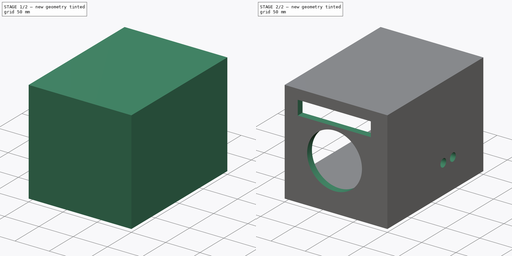
[diagram: build sequence overview — one tinted view per stage of 2, left to right]
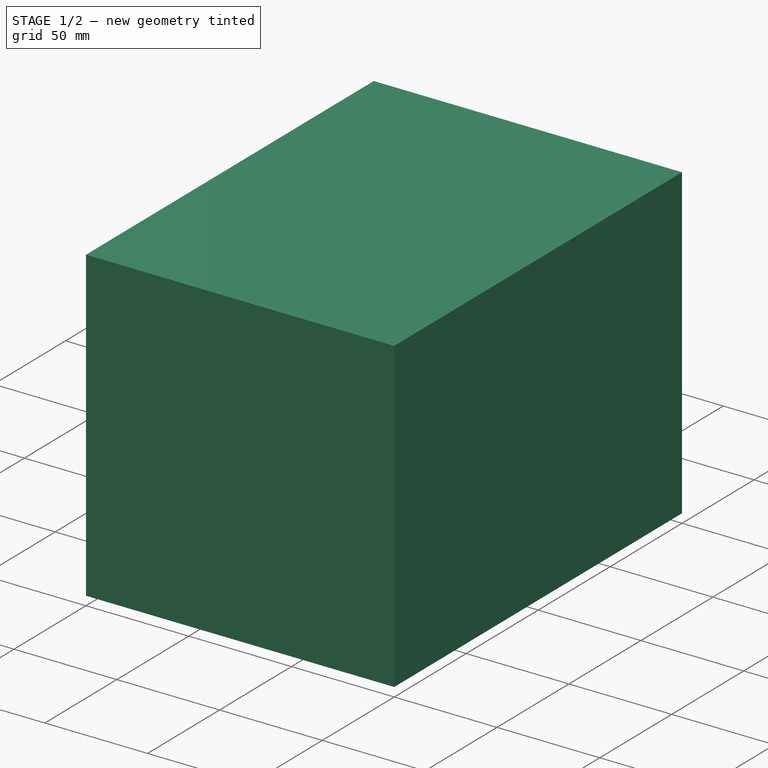
[diagram: stage 1 of 2 — iso view after this stage's code; geometry added in this stage tinted green]
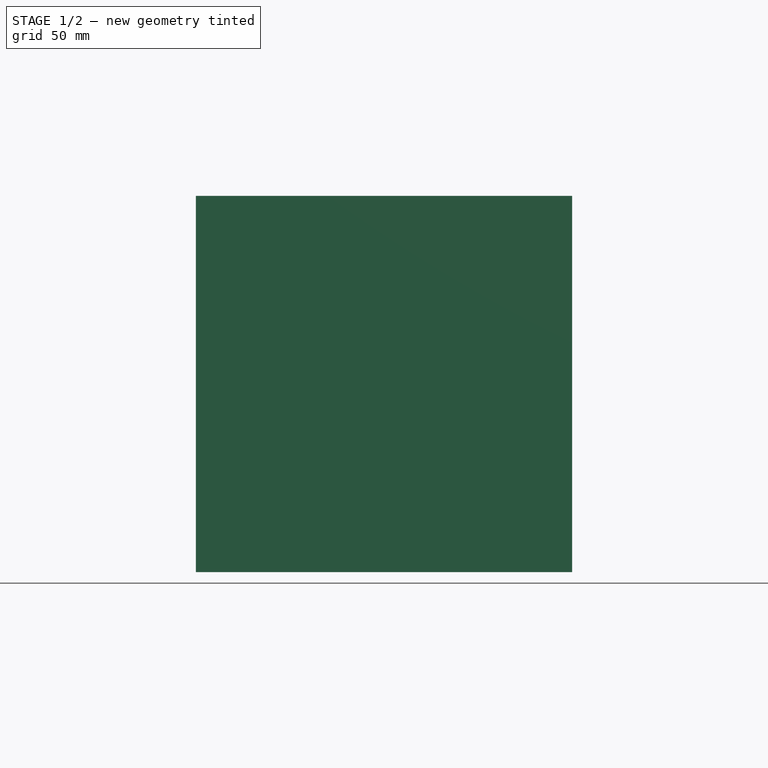
[diagram: stage 1 of 2 — front view after this stage's code; geometry added in this stage tinted green]
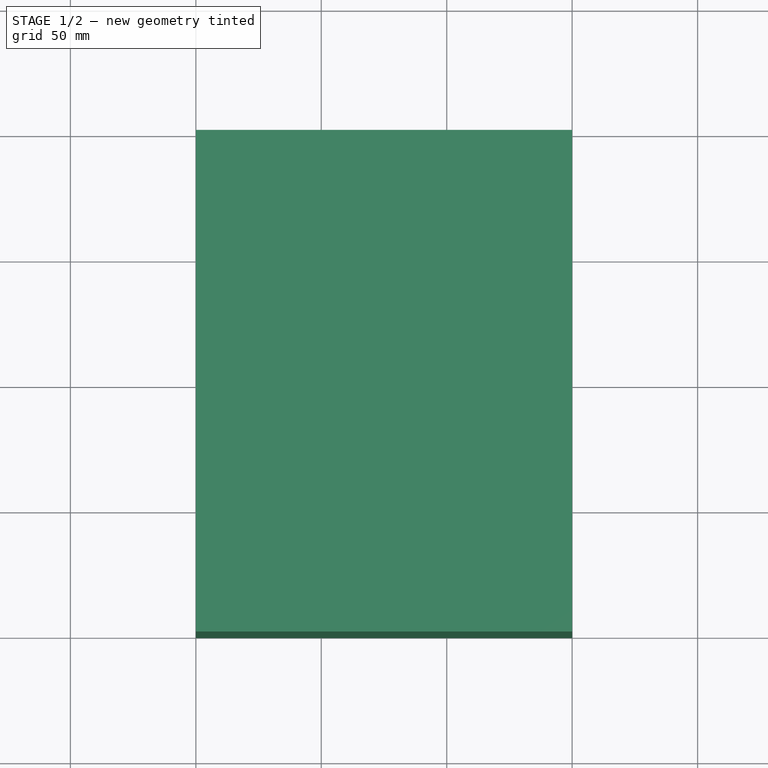
[diagram: stage 1 of 2 — top view after this stage's code; geometry added in this stage tinted green]
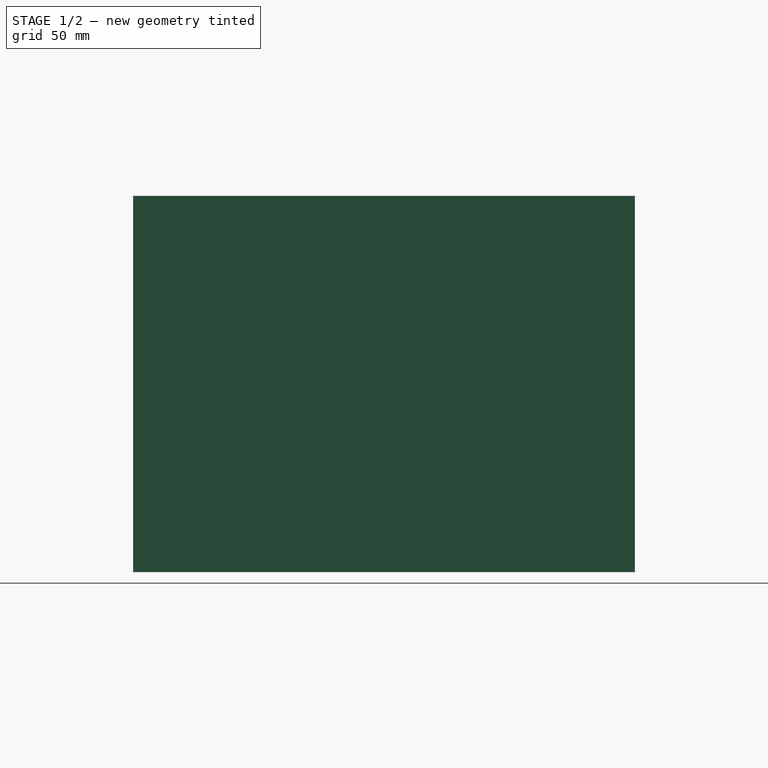
[diagram: stage 1 of 2 — right view after this stage's code; geometry added in this stage tinted green]
FCSTD DOCUMENT  (FreeCAD 0.16R6712 (Git))
Label: DSLR_Enclosure01
License: All rights reserved
LicenseURL: http://en.wikipedia.org/wiki/All_rights_reserved
objects: Sketcher::SketchObject×3, PartDesign::Pocket×3, Part::Box×1
note: 10 computed .brp shape members not serialized (recipe doc carries the construction recipe); baked Part::Feature solids carry a one-line shape summary decoded from their .brp

FEATURE [Part::Box] Box  label="Cube"
  Height = 150
  Length = 150
  Width = 200
FEATURE [Sketcher::SketchObject] Sketch
  Placement = pos=(0,0,0) rot=(0.57735,-0.57735,-0.57735;2.0944rad)
  Support = -> Box [Face1]
  sketch-geometry (8):
    g0: LineSegment StartX=-189.857 StartY=137.384 StartZ=0 EndX=-9.94506 EndY=137.384 EndZ=0
    g1: LineSegment StartX=-9.94506 StartY=137.384 StartZ=0 EndX=-9.94506 EndY=22.005 EndZ=0
    g2: LineSegment StartX=-9.94506 StartY=22.005 StartZ=0 EndX=-189.857 EndY=22.005 EndZ=0
    g3: LineSegment StartX=-189.857 StartY=22.005 StartZ=0 EndX=-189.857 EndY=137.384 EndZ=0
    g4: LineSegment StartX=-189.882 StartY=16.0048 StartZ=0 EndX=-9.97002 EndY=16.0048 EndZ=0
    g5: LineSegment StartX=-9.97002 StartY=16.0048 StartZ=0 EndX=-9.97002 EndY=3.39227 EndZ=0
    g6: LineSegment StartX=-9.97002 StartY=3.39227 StartZ=0 EndX=-189.882 EndY=3.39227 EndZ=0
    g7: LineSegment StartX=-189.882 StartY=3.39227 StartZ=0 EndX=-189.882 EndY=16.0048 EndZ=0
  constraints (17):
    c: Coincident(g0,g1)
    c: Coincident(g1,g2)
    c: Coincident(g2,g3)
    c: Coincident(g3,g0)
    c: Horizontal(g0)
    c: Horizontal(g2)
    c: Vertical(g1)
    c: Vertical(g3)
    c: Coincident(g4,g5)
    c: Coincident(g5,g6)
    c: Coincident(g6,g7)
    c: Coincident(g7,g4)
    c: Horizontal(g4)
    c: Horizontal(g6)
    c: Vertical(g5)
    c: Vertical(g7)
    c: Equal(g4,g2)
FEATURE [PartDesign::Pocket] Pocket
  Length = 140
  Sketch = -> Sketch
  Type = 0
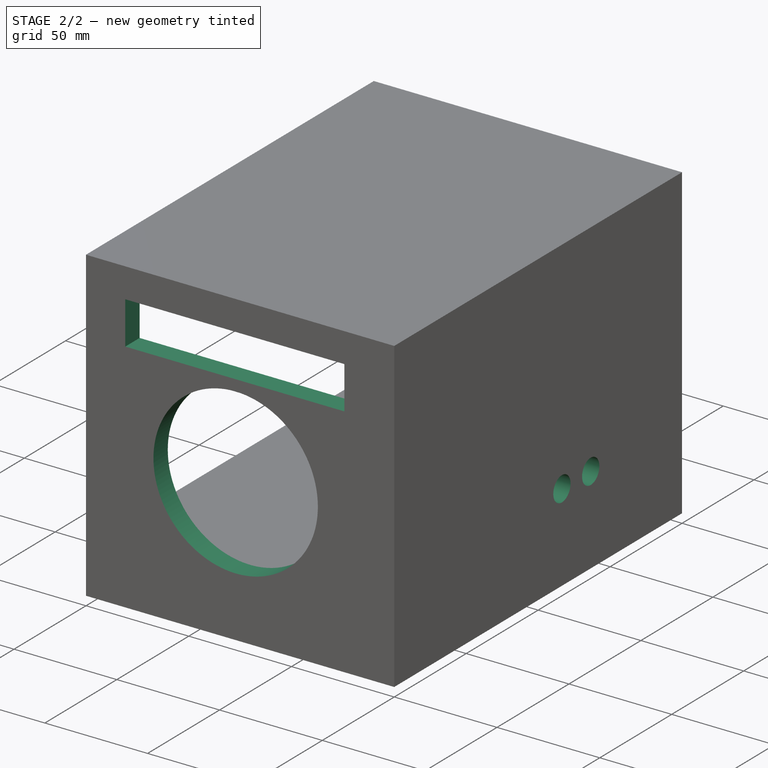
[diagram: stage 2 of 2 — iso view after this stage's code; geometry added in this stage tinted green]
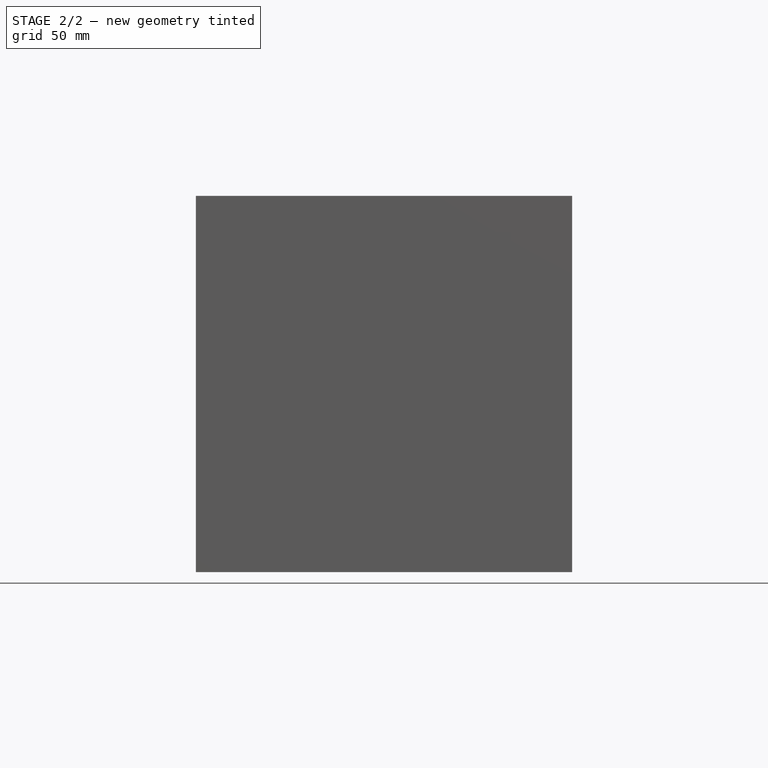
[diagram: stage 2 of 2 — front view after this stage's code; geometry added in this stage tinted green]
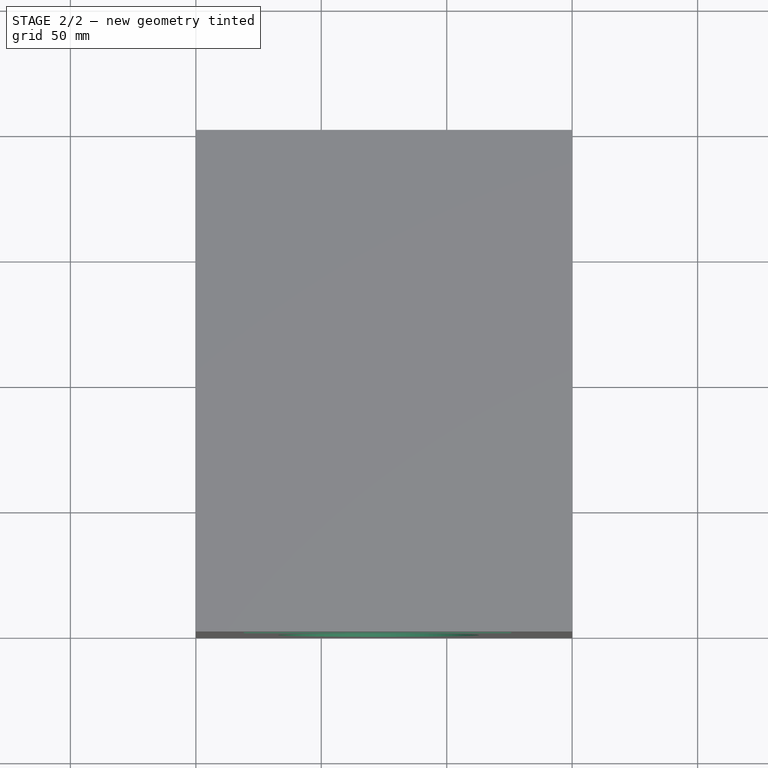
[diagram: stage 2 of 2 — top view after this stage's code; geometry added in this stage tinted green]
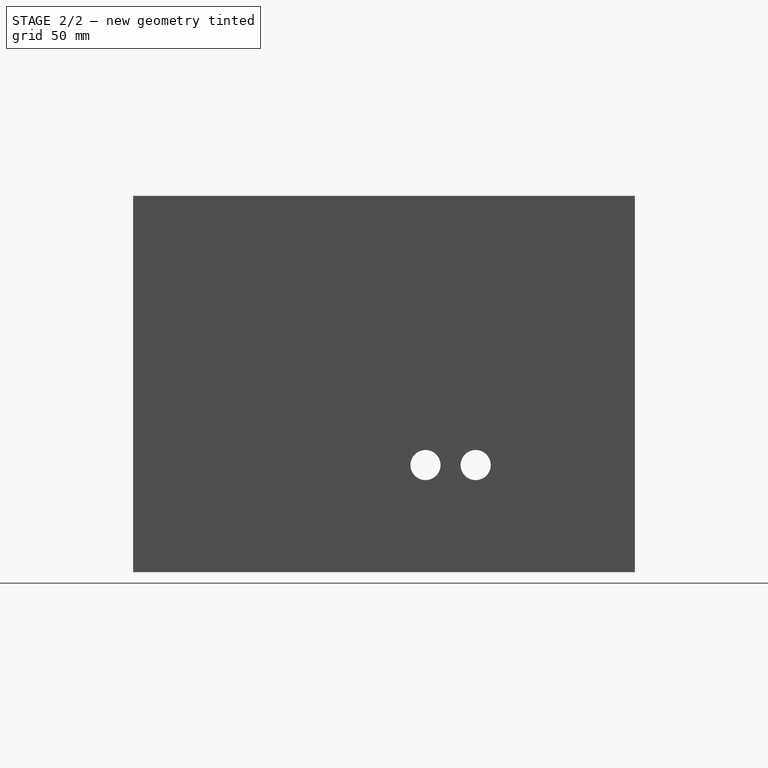
[diagram: stage 2 of 2 — right view after this stage's code; geometry added in this stage tinted green]
FEATURE [Sketcher::SketchObject] Sketch001
  Placement = pos=(0,0,0) rot=(1,0,0;1.5708rad)
  Support = -> Pocket [Face2]
  sketch-geometry (9):
    g0: LineSegment StartX=460.075 StartY=971.329 StartZ=0 EndX=1054.23 EndY=971.329 EndZ=0
    g1: LineSegment StartX=1054.23 StartY=971.329 StartZ=0 EndX=1054.23 EndY=783.369 EndZ=0
    g2: LineSegment StartX=1054.23 StartY=783.369 StartZ=0 EndX=460.075 EndY=783.369 EndZ=0
    g3: LineSegment StartX=460.075 StartY=783.369 StartZ=0 EndX=460.075 EndY=971.329 EndZ=0
    g4: Circle CenterX=72.8391 CenterY=69.3119 CenterZ=0 NormalX=0 NormalY=0 NormalZ=1 Radius=40
    g5: LineSegment StartX=19.1397 StartY=135.529 StartZ=0 EndX=125.721 EndY=135.529 EndZ=0
    g6: LineSegment StartX=125.721 StartY=135.529 StartZ=0 EndX=125.721 EndY=114.717 EndZ=0
    g7: LineSegment StartX=125.721 StartY=114.717 StartZ=0 EndX=19.1397 EndY=114.717 EndZ=0
    g8: LineSegment StartX=19.1397 StartY=114.717 StartZ=0 EndX=19.1397 EndY=135.529 EndZ=0
  constraints (9):
    c: Radius(g4) = 40
    c: Coincident(g5,g6)
    c: Coincident(g6,g7)
    c: Coincident(g7,g8)
    c: Coincident(g8,g5)
    c: Horizontal(g5)
    c: Horizontal(g7)
    c: Vertical(g6)
    c: Vertical(g8)
FEATURE [PartDesign::Pocket] Pocket001
  Length = 20
  Sketch = -> Sketch001
  Type = 0
FEATURE [Sketcher::SketchObject] Sketch002
  Placement = pos=(150,0,0) rot=(0.57735,0.57735,0.57735;2.0944rad)
  Support = -> Pocket001 [Face14]
  sketch-geometry (2):
    g0: Circle CenterX=116.542 CenterY=42.6887 CenterZ=0 NormalX=0 NormalY=0 NormalZ=1 Radius=6
    g1: Circle CenterX=136.542 CenterY=42.6887 CenterZ=0 NormalX=0 NormalY=0 NormalZ=1 Radius=6
  constraints (3):
    c: Radius(g0) = 6
    c: Radius(g1) = 6
    c: DistanceX(g0,g1) = 20
FEATURE [PartDesign::Pocket] Pocket002
  Length = 20
  Sketch = -> Sketch002
  Type = 0
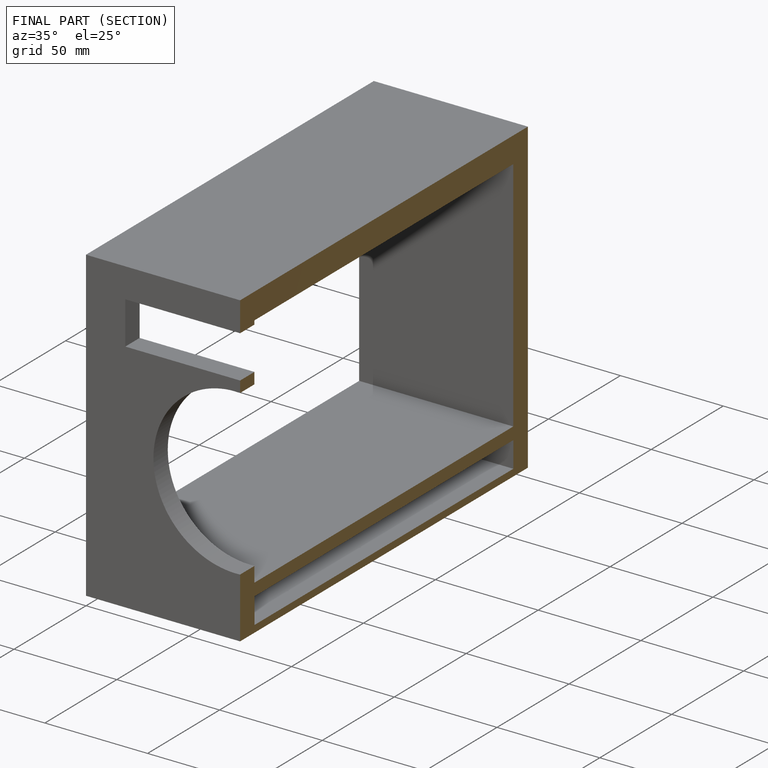
[diagram: finished part — half-section view (interior)]
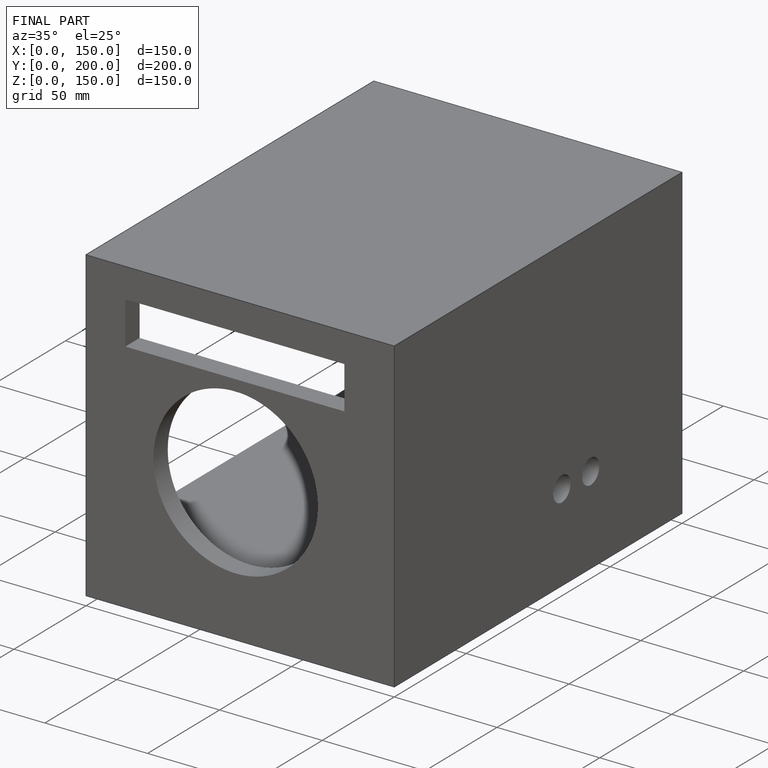
[diagram: finished part — iso view with bounding-box wireframe]
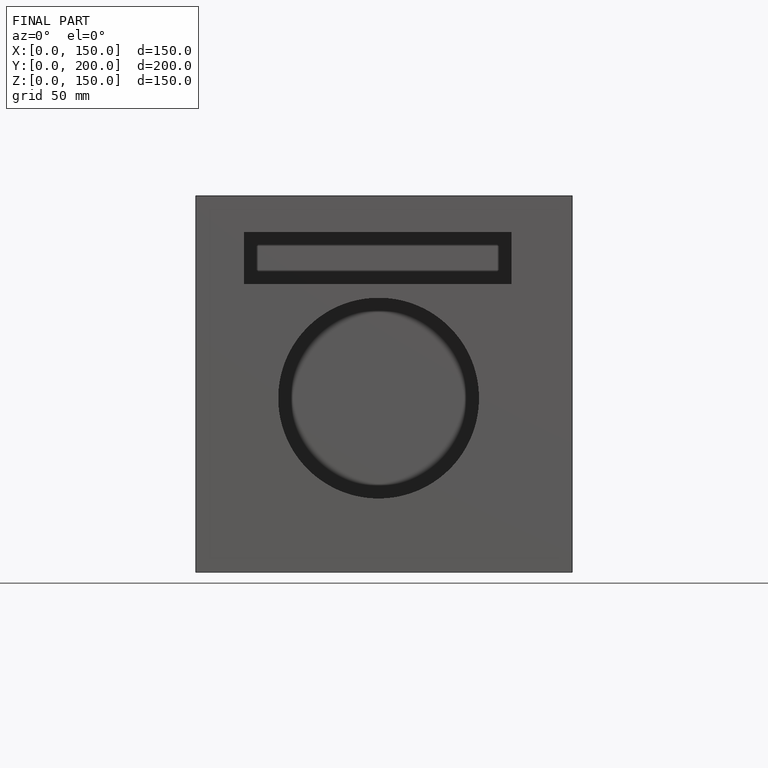
[diagram: finished part — front view with bounding-box wireframe]
